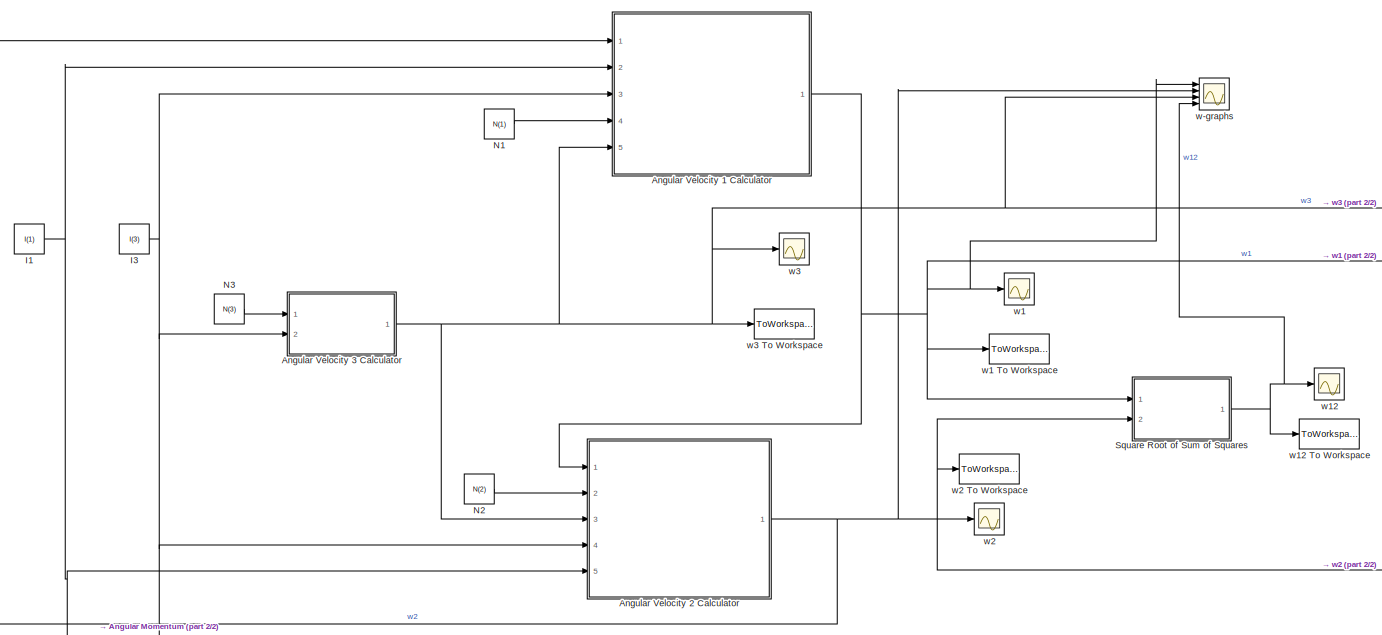
[diagram: root canvas - part 1/2, center side, full height]
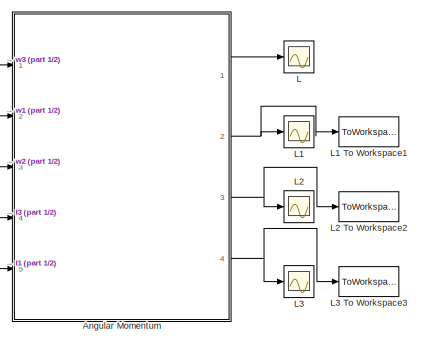
[diagram: root canvas - part 2/2, bottom right region]
MODEL slx_7f8dd500d670
KIND model
CONFIG AbsTol = 1e-5
CONFIG EnableMultiTasking = on
CONFIG FixedStep = auto
CONFIG MaxStep = 0.001
CONFIG MinStep = auto
CONFIG RelTol = 1e-5
CONFIG SampleTimeConstraint = Unconstrained
CONFIG Solver = ode45
CONFIG SolverName = ode45
CONFIG StartTime = 0.0
CONFIG StopTime = 20
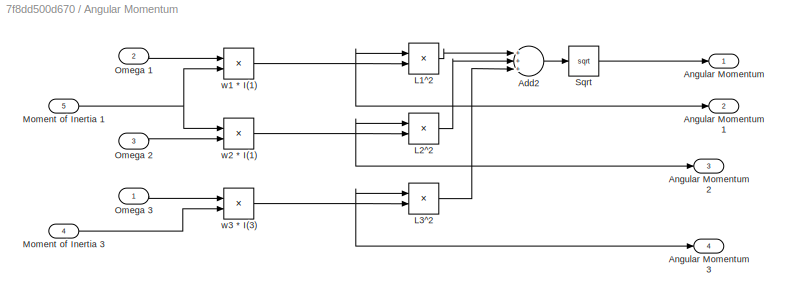
BLOCK [SubSystem] Angular Momentum
  Ports = [5, 4]
  RequestExecContextInheritance = off
  Variant = off
BLOCK [Sum] Angular Momentum/Add2
  InputSameDT = off
  Inputs = +++
  OutDataTypeStr = Inherit: Inherit via internal rule
  Ports = [3, 1]
  SaturateOnIntegerOverflow = off
BLOCK [Outport] Angular Momentum/Angular Momentum
  IconDisplay = Port number
BLOCK [Outport] Angular Momentum/Angular Momentum 1
  IconDisplay = Port number
  Port = 2
BLOCK [Outport] Angular Momentum/Angular Momentum 2
  IconDisplay = Port number
  Port = 3
BLOCK [Outport] Angular Momentum/Angular Momentum 3
  IconDisplay = Port number
  Port = 4
BLOCK [Product] Angular Momentum/L1^2
  InputSameDT = off
  OutDataTypeStr = Inherit: Inherit via internal rule
  Ports = [2, 1]
  RndMeth = Floor
  SaturateOnIntegerOverflow = off
BLOCK [Product] Angular Momentum/L2^2
  InputSameDT = off
  OutDataTypeStr = Inherit: Inherit via internal rule
  Ports = [2, 1]
  RndMeth = Floor
  SaturateOnIntegerOverflow = off
BLOCK [Product] Angular Momentum/L3^2
  InputSameDT = off
  OutDataTypeStr = Inherit: Inherit via internal rule
  Ports = [2, 1]
  RndMeth = Floor
  SaturateOnIntegerOverflow = off
BLOCK [Inport] Angular Momentum/Moment of Inertia 1 
  IconDisplay = Port number
  Port = 5
BLOCK [Inport] Angular Momentum/Moment of Inertia 3
  IconDisplay = Port number
  Port = 4
BLOCK [Inport] Angular Momentum/Omega 1
  IconDisplay = Port number
  Port = 2
BLOCK [Inport] Angular Momentum/Omega 2
  IconDisplay = Port number
  Port = 3
BLOCK [Inport] Angular Momentum/Omega 3
  IconDisplay = Port number
BLOCK [Sqrt] Angular Momentum/Sqrt
BLOCK [Product] Angular Momentum/w1 * I(1)
  InputSameDT = off
  OutDataTypeStr = Inherit: Inherit via internal rule
  Ports = [2, 1]
  RndMeth = Floor
  SaturateOnIntegerOverflow = off
BLOCK [Product] Angular Momentum/w2 * I(1)
  InputSameDT = off
  OutDataTypeStr = Inherit: Inherit via internal rule
  Ports = [2, 1]
  RndMeth = Floor
  SaturateOnIntegerOverflow = off
BLOCK [Product] Angular Momentum/w3 * I(3)
  InputSameDT = off
  OutDataTypeStr = Inherit: Inherit via internal rule
  Ports = [2, 1]
  RndMeth = Floor
  SaturateOnIntegerOverflow = off
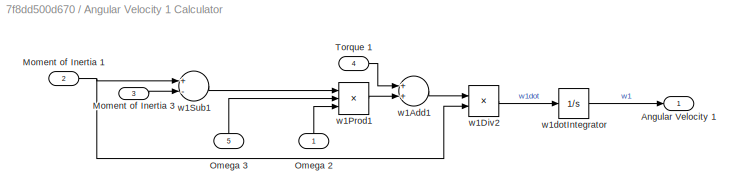
BLOCK [SubSystem] Angular Velocity 1 Calculator
  Ports = [5, 1]
  RequestExecContextInheritance = off
  Variant = off
BLOCK [Outport] Angular Velocity 1 Calculator/Angular Velocity 1
  IconDisplay = Port number
BLOCK [Inport] Angular Velocity 1 Calculator/Moment of Inertia 1
  IconDisplay = Port number
  Port = 2
BLOCK [Inport] Angular Velocity 1 Calculator/Moment of Inertia 3
  IconDisplay = Port number
  Port = 3
BLOCK [Inport] Angular Velocity 1 Calculator/Omega 2
  IconDisplay = Port number
BLOCK [Inport] Angular Velocity 1 Calculator/Omega 3
  IconDisplay = Port number
  Port = 5
BLOCK [Inport] Angular Velocity 1 Calculator/Torque 1
  IconDisplay = Port number
  Port = 4
BLOCK [Sum] Angular Velocity 1 Calculator/w1Add1
  InputSameDT = off
  OutDataTypeStr = Inherit: Inherit via internal rule
  Ports = [2, 1]
  SaturateOnIntegerOverflow = off
BLOCK [Product] Angular Velocity 1 Calculator/w1Div2
  InputSameDT = off
  Inputs = */
  OutDataTypeStr = Inherit: Inherit via internal rule
  Ports = [2, 1]
  RndMeth = Floor
  SaturateOnIntegerOverflow = off
BLOCK [Product] Angular Velocity 1 Calculator/w1Prod1
  InputSameDT = off
  Inputs = 3
  OutDataTypeStr = Inherit: Inherit via internal rule
  Ports = [3, 1]
  RndMeth = Floor
  SaturateOnIntegerOverflow = off
BLOCK [Sum] Angular Velocity 1 Calculator/w1Sub1
  InputSameDT = off
  Inputs = +-
  OutDataTypeStr = Inherit: Inherit via internal rule
  Ports = [2, 1]
  SaturateOnIntegerOverflow = off
BLOCK [Integrator] Angular Velocity 1 Calculator/w1dotIntegrator
  InitialCondition = w(1)
  Ports = [1, 1]
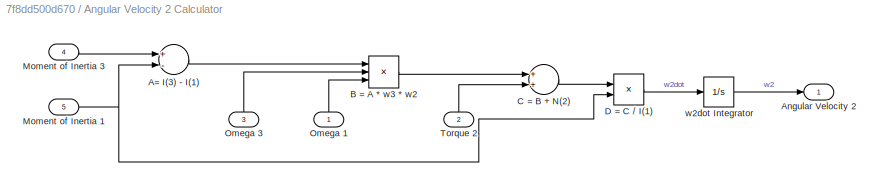
BLOCK [SubSystem] Angular Velocity 2 Calculator
  Ports = [5, 1]
  RequestExecContextInheritance = off
  Variant = off
BLOCK [Sum] Angular Velocity 2 Calculator/A= I(3) - I(1)
  InputSameDT = off
  Inputs = +-
  OutDataTypeStr = Inherit: Inherit via internal rule
  Ports = [2, 1]
  SaturateOnIntegerOverflow = off
BLOCK [Outport] Angular Velocity 2 Calculator/Angular Velocity 2
  IconDisplay = Port number
BLOCK [Product] Angular Velocity 2 Calculator/B =  A * w3 * w2
  InputSameDT = off
  Inputs = 3
  OutDataTypeStr = Inherit: Inherit via internal rule
  Ports = [3, 1]
  RndMeth = Floor
  SaturateOnIntegerOverflow = off
BLOCK [Sum] Angular Velocity 2 Calculator/C = B + N(2)
  InputSameDT = off
  OutDataTypeStr = Inherit: Inherit via internal rule
  Ports = [2, 1]
  SaturateOnIntegerOverflow = off
BLOCK [Product] Angular Velocity 2 Calculator/D = C // I(1)
  InputSameDT = off
  Inputs = */
  OutDataTypeStr = Inherit: Inherit via internal rule
  Ports = [2, 1]
  RndMeth = Floor
  SaturateOnIntegerOverflow = off
BLOCK [Inport] Angular Velocity 2 Calculator/Moment of Inertia 1
  IconDisplay = Port number
  Port = 5
BLOCK [Inport] Angular Velocity 2 Calculator/Moment of Inertia 3
  IconDisplay = Port number
  Port = 4
BLOCK [Inport] Angular Velocity 2 Calculator/Omega 1
  IconDisplay = Port number
BLOCK [Inport] Angular Velocity 2 Calculator/Omega 3
  IconDisplay = Port number
  Port = 3
BLOCK [Inport] Angular Velocity 2 Calculator/Torque 2
  IconDisplay = Port number
  Port = 2
BLOCK [Integrator] Angular Velocity 2 Calculator/w2dot Integrator
  InitialCondition = w(2)
  Ports = [1, 1]
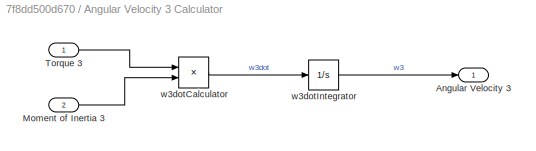
BLOCK [SubSystem] Angular Velocity 3 Calculator
  Ports = [2, 1]
  RequestExecContextInheritance = off
  Variant = off
BLOCK [Outport] Angular Velocity 3 Calculator/Angular Velocity 3 
  IconDisplay = Port number
BLOCK [Inport] Angular Velocity 3 Calculator/Moment of Inertia 3
  IconDisplay = Port number
  Port = 2
BLOCK [Inport] Angular Velocity 3 Calculator/Torque 3
  IconDisplay = Port number
BLOCK [Product] Angular Velocity 3 Calculator/w3dotCalculator
  InputSameDT = off
  Inputs = */
  OutDataTypeStr = Inherit: Inherit via internal rule
  Ports = [2, 1]
  RndMeth = Floor
  SaturateOnIntegerOverflow = off
BLOCK [Integrator] Angular Velocity 3 Calculator/w3dotIntegrator
  InitialCondition = w(3)
  Ports = [1, 1]
BLOCK [Constant] I1
  Value = I(1)
BLOCK [Constant] I3
  Value = I(3)
BLOCK [Scope] L
  NumInputPorts = 1
  Ports = [1]
  ScopeSpecificationString = Simulink.scopes.TimeScopeBlockCfg('CurrentConfiguration', extmgr.ConfigurationSet(extmgr.Configuration('Core','General UI',true),extmgr.Configuration('Core','Source UI',true),extmgr.Configuration('Sources','WiredSimulink',true,'DataLoggingVariableName','ScopeData4'),extmgr.Configuration('Visuals','Time Domain',true,'SerializedDisplays',{struct('MinYLimReal','35.12833614050044','MaxYLimReal','35.12...<+1484ch>
BLOCK [Scope] L1
  NumInputPorts = 1
  Ports = [1]
  ScopeSpecificationString = Simulink.scopes.TimeScopeBlockCfg('CurrentConfiguration', extmgr.ConfigurationSet(extmgr.Configuration('Core','General UI',true),extmgr.Configuration('Core','Source UI',true),extmgr.Configuration('Sources','WiredSimulink',true,'DataLoggingVariableName','ScopeData1','DataLoggingLimitDataPoints',true,'DataLoggingSaveFormat','Array','DataLoggingDecimation','1','DataLoggingDecimateData',true),extmgr.C...<+1502ch>
BLOCK [ToWorkspace] L1 To Workspace1
  FixptAsFi = on
  MaxDataPoints = inf
  Ports = [1]
  SampleTime = -1
  Save2DSignal = 3-D array (concatenate along third dimension)
  SaveFormat = Timeseries
  VariableName = L1
BLOCK [Scope] L2
  NumInputPorts = 1
  Ports = [1]
  ScopeSpecificationString = Simulink.scopes.TimeScopeBlockCfg('CurrentConfiguration', extmgr.ConfigurationSet(extmgr.Configuration('Core','General UI',true),extmgr.Configuration('Core','Source UI',true),extmgr.Configuration('Sources','WiredSimulink',true,'DataLoggingVariableName','ScopeData2','DataLoggingLimitDataPoints',true,'DataLoggingSaveFormat','Array','DataLoggingDecimation','1','DataLoggingDecimateData',true),extmgr.C...<+1502ch>
BLOCK [ToWorkspace] L2 To Workspace2
  FixptAsFi = on
  MaxDataPoints = inf
  Ports = [1]
  SampleTime = -1
  Save2DSignal = 3-D array (concatenate along third dimension)
  SaveFormat = Timeseries
  VariableName = L2
BLOCK [Scope] L3
  NumInputPorts = 1
  Ports = [1]
  ScopeSpecificationString = Simulink.scopes.TimeScopeBlockCfg('CurrentConfiguration', extmgr.ConfigurationSet(extmgr.Configuration('Core','General UI',true),extmgr.Configuration('Core','Source UI',true),extmgr.Configuration('Sources','WiredSimulink',true,'DataLoggingVariableName','ScopeData3'),extmgr.Configuration('Visuals','Time Domain',true,'SerializedDisplays',{struct('MinYLimReal','25.00000','MaxYLimReal','45.00000','YLa...<+1383ch>
BLOCK [ToWorkspace] L3 To Workspace3
  FixptAsFi = on
  MaxDataPoints = inf
  Ports = [1]
  SampleTime = -1
  Save2DSignal = 3-D array (concatenate along third dimension)
  SaveFormat = Timeseries
  VariableName = L3
BLOCK [Constant] N1
  Value = N(1)
BLOCK [Constant] N2
  Value = N(2)
BLOCK [Constant] N3
  Value = N(3)
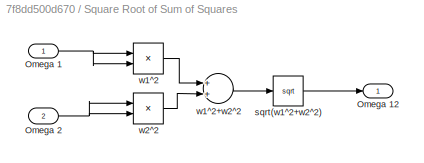
BLOCK [SubSystem] Square Root of Sum of Squares
  Ports = [2, 1]
  RequestExecContextInheritance = off
  Variant = off
BLOCK [Inport] Square Root of Sum of Squares/Omega 1
  IconDisplay = Port number
BLOCK [Outport] Square Root of Sum of Squares/Omega 12
  IconDisplay = Port number
BLOCK [Inport] Square Root of Sum of Squares/Omega 2
  IconDisplay = Port number
  Port = 2
BLOCK [Sqrt] Square Root of Sum of Squares/sqrt(w1^2+w2^2)
BLOCK [Product] Square Root of Sum of Squares/w1^2
  InputSameDT = off
  OutDataTypeStr = Inherit: Inherit via internal rule
  Ports = [2, 1]
  RndMeth = Floor
  SaturateOnIntegerOverflow = off
BLOCK [Sum] Square Root of Sum of Squares/w1^2+w2^2
  InputSameDT = off
  OutDataTypeStr = Inherit: Inherit via internal rule
  Ports = [2, 1]
  SaturateOnIntegerOverflow = off
BLOCK [Product] Square Root of Sum of Squares/w2^2
  InputSameDT = off
  OutDataTypeStr = Inherit: Inherit via internal rule
  Ports = [2, 1]
  RndMeth = Floor
  SaturateOnIntegerOverflow = off
BLOCK [Scope] w-graphs
  NumInputPorts = 4
  Ports = [4]
  ScopeSpecificationString = Simulink.scopes.TimeScopeBlockCfg('CurrentConfiguration', extmgr.ConfigurationSet(extmgr.Configuration('Core','General UI',true),extmgr.Configuration('Core','Source UI',true),extmgr.Configuration('Sources','WiredSimulink',true,'DataLoggingVariableName','ScopeData1'),extmgr.Configuration('Visuals','Time Domain',true,'SerializedDisplays',{struct('MinYLimReal','-6.73146','MaxYLimReal','6.73146','YLab...<+3400ch>
BLOCK [Scope] w1
  NumInputPorts = 1
  Ports = [1]
  ScopeSpecificationString = Simulink.scopes.TimeScopeBlockCfg('CurrentConfiguration', extmgr.ConfigurationSet(extmgr.Configuration('Core','General UI',true),extmgr.Configuration('Core','Source UI',true),extmgr.Configuration('Sources','WiredSimulink',true,'DataLoggingVariableName','ScopeData1'),extmgr.Configuration('Visuals','Time Domain',true,'SerializedDisplays',{struct('MinYLimReal','-6.73146','MaxYLimReal','6.73146','YLab...<+1361ch>
BLOCK [ToWorkspace] w1 To Workspace
  FixptAsFi = on
  MaxDataPoints = inf
  Ports = [1]
  SampleTime = -1
  Save2DSignal = 3-D array (concatenate along third dimension)
  SaveFormat = Timeseries
  VariableName = w1
BLOCK [Scope] w12
  NumInputPorts = 1
  Ports = [1]
  ScopeSpecificationString = Simulink.scopes.TimeScopeBlockCfg('CurrentConfiguration', extmgr.ConfigurationSet(extmgr.Configuration('Core','General UI',true),extmgr.Configuration('Core','Source UI',true),extmgr.Configuration('Sources','WiredSimulink',true,'DataLoggingVariableName','ScopeData4'),extmgr.Configuration('Visuals','Time Domain',true,'SerializedDisplays',{struct('MinYLimReal','5.385164807134461','MaxYLimReal','5.385...<+1440ch>
BLOCK [ToWorkspace] w12 To Workspace
  FixptAsFi = on
  MaxDataPoints = inf
  Ports = [1]
  SampleTime = -1
  Save2DSignal = 3-D array (concatenate along third dimension)
  SaveFormat = Timeseries
  VariableName = w12
BLOCK [Scope] w2
  NumInputPorts = 1
  Ports = [1]
  ScopeSpecificationString = Simulink.scopes.TimeScopeBlockCfg('CurrentConfiguration', extmgr.ConfigurationSet(extmgr.Configuration('Core','General UI',true),extmgr.Configuration('Core','Source UI',true),extmgr.Configuration('Sources','WiredSimulink',true,'DataLoggingVariableName','ScopeData2','DataLoggingSaveFormat','Array','DataLoggingDecimation','1','DataLoggingDecimateData',true),extmgr.Configuration('Visuals','Time Domai...<+1452ch>
BLOCK [ToWorkspace] w2 To Workspace
  FixptAsFi = on
  MaxDataPoints = inf
  Ports = [1]
  SampleTime = -1
  Save2DSignal = 3-D array (concatenate along third dimension)
  SaveFormat = Timeseries
  VariableName = w2
BLOCK [Scope] w3
  NumInputPorts = 1
  Ports = [1]
  ScopeSpecificationString = Simulink.scopes.TimeScopeBlockCfg('CurrentConfiguration', extmgr.ConfigurationSet(extmgr.Configuration('Core','General UI',true),extmgr.Configuration('Core','Source UI',true),extmgr.Configuration('Sources','WiredSimulink',true,'DataLoggingVariableName','ScopeData3'),extmgr.Configuration('Visuals','Time Domain',true,'SerializedDisplays',{struct('MinYLimReal','-7.00000','MaxYLimReal','-5.00000','YLa...<+1363ch>
BLOCK [ToWorkspace] w3 To Workspace
  FixptAsFi = on
  MaxDataPoints = inf
  Ports = [1]
  SampleTime = -1
  Save2DSignal = 3-D array (concatenate along third dimension)
  SaveFormat = Timeseries
  VariableName = w3
LINE Angular Momentum/Add2:1 -> Angular Momentum/Sqrt:1
LINE Angular Momentum/L1^2:1 -> Angular Momentum/Add2:1
LINE Angular Momentum/L2^2:1 -> Angular Momentum/Add2:2
LINE Angular Momentum/L3^2:1 -> Angular Momentum/Add2:3
NET Angular Momentum/Moment of Inertia 1 :1 -> Angular Momentum/w1 * I(1):2, Angular Momentum/w2 * I(1):1
LINE Angular Momentum/Moment of Inertia 3:1 -> Angular Momentum/w3 * I(3):2
LINE Angular Momentum/Omega 1:1 -> Angular Momentum/w1 * I(1):1
LINE Angular Momentum/Omega 2:1 -> Angular Momentum/w2 * I(1):2
LINE Angular Momentum/Omega 3:1 -> Angular Momentum/w3 * I(3):1
LINE Angular Momentum/Sqrt:1 -> Angular Momentum/Angular Momentum:1
NET Angular Momentum/w1 * I(1):1 -> Angular Momentum/Angular Momentum 1:1, Angular Momentum/L1^2:1, Angular Momentum/L1^2:2
NET Angular Momentum/w2 * I(1):1 -> Angular Momentum/Angular Momentum 2:1, Angular Momentum/L2^2:1, Angular Momentum/L2^2:2
NET Angular Momentum/w3 * I(3):1 -> Angular Momentum/Angular Momentum 3:1, Angular Momentum/L3^2:1, Angular Momentum/L3^2:2
LINE Angular Momentum:1 -> L:1
NET Angular Momentum:2 -> L1 To Workspace1:1, L1:1
NET Angular Momentum:3 -> L2 To Workspace2:1, L2:1
NET Angular Momentum:4 -> L3 To Workspace3:1, L3:1
NET Angular Velocity 1 Calculator/Moment of Inertia 1:1 -> Angular Velocity 1 Calculator/w1Div2:2, Angular Velocity 1 Calculator/w1Sub1:1
LINE Angular Velocity 1 Calculator/Moment of Inertia 3:1 -> Angular Velocity 1 Calculator/w1Sub1:2
LINE Angular Velocity 1 Calculator/Omega 2:1 -> Angular Velocity 1 Calculator/w1Prod1:3
LINE Angular Velocity 1 Calculator/Omega 3:1 -> Angular Velocity 1 Calculator/w1Prod1:2
LINE Angular Velocity 1 Calculator/Torque 1:1 -> Angular Velocity 1 Calculator/w1Add1:1
LINE Angular Velocity 1 Calculator/w1Add1:1 -> Angular Velocity 1 Calculator/w1Div2:1
LINE Angular Velocity 1 Calculator/w1Div2:1 -> Angular Velocity 1 Calculator/w1dotIntegrator:1
LINE Angular Velocity 1 Calculator/w1Prod1:1 -> Angular Velocity 1 Calculator/w1Add1:2
LINE Angular Velocity 1 Calculator/w1Sub1:1 -> Angular Velocity 1 Calculator/w1Prod1:1
LINE Angular Velocity 1 Calculator/w1dotIntegrator:1 -> Angular Velocity 1 Calculator/Angular Velocity 1:1
NET Angular Velocity 1 Calculator:1 -> Angular Momentum:2, Angular Velocity 2 Calculator:1, Square Root of Sum of Squares:1, w-graphs:1, w1 To Workspace:1, w1:1
LINE Angular Velocity 2 Calculator/A= I(3) - I(1):1 -> Angular Velocity 2 Calculator/B =  A * w3 * w2:1
LINE Angular Velocity 2 Calculator/B =  A * w3 * w2:1 -> Angular Velocity 2 Calculator/C = B + N(2):1
LINE Angular Velocity 2 Calculator/C = B + N(2):1 -> Angular Velocity 2 Calculator/D = C // I(1):1
LINE Angular Velocity 2 Calculator/D = C // I(1):1 -> Angular Velocity 2 Calculator/w2dot Integrator:1
NET Angular Velocity 2 Calculator/Moment of Inertia 1:1 -> Angular Velocity 2 Calculator/A= I(3) - I(1):2, Angular Velocity 2 Calculator/D = C // I(1):2
LINE Angular Velocity 2 Calculator/Moment of Inertia 3:1 -> Angular Velocity 2 Calculator/A= I(3) - I(1):1
LINE Angular Velocity 2 Calculator/Omega 1:1 -> Angular Velocity 2 Calculator/B =  A * w3 * w2:3
LINE Angular Velocity 2 Calculator/Omega 3:1 -> Angular Velocity 2 Calculator/B =  A * w3 * w2:2
LINE Angular Velocity 2 Calculator/Torque 2:1 -> Angular Velocity 2 Calculator/C = B + N(2):2
LINE Angular Velocity 2 Calculator/w2dot Integrator:1 -> Angular Velocity 2 Calculator/Angular Velocity 2:1
NET Angular Velocity 2 Calculator:1 -> Angular Momentum:3, Angular Velocity 1 Calculator:1, Square Root of Sum of Squares:2, w-graphs:2, w2 To Workspace:1, w2:1
LINE Angular Velocity 3 Calculator/Moment of Inertia 3:1 -> Angular Velocity 3 Calculator/w3dotCalculator:2
LINE Angular Velocity 3 Calculator/Torque 3:1 -> Angular Velocity 3 Calculator/w3dotCalculator:1
LINE Angular Velocity 3 Calculator/w3dotCalculator:1 -> Angular Velocity 3 Calculator/w3dotIntegrator:1
LINE Angular Velocity 3 Calculator/w3dotIntegrator:1 -> Angular Velocity 3 Calculator/Angular Velocity 3 :1
NET Angular Velocity 3 Calculator:1 -> Angular Momentum:1, Angular Velocity 1 Calculator:5, Angular Velocity 2 Calculator:3, w-graphs:3, w3 To Workspace:1, w3:1
NET I1:1 -> Angular Momentum:5, Angular Velocity 1 Calculator:2, Angular Velocity 2 Calculator:5
NET I3:1 -> Angular Momentum:4, Angular Velocity 1 Calculator:3, Angular Velocity 2 Calculator:4, Angular Velocity 3 Calculator:2
LINE N1:1 -> Angular Velocity 1 Calculator:4
LINE N2:1 -> Angular Velocity 2 Calculator:2
LINE N3:1 -> Angular Velocity 3 Calculator:1
NET Square Root of Sum of Squares/Omega 1:1 -> Square Root of Sum of Squares/w1^2:1, Square Root of Sum of Squares/w1^2:2
NET Square Root of Sum of Squares/Omega 2:1 -> Square Root of Sum of Squares/w2^2:1, Square Root of Sum of Squares/w2^2:2
LINE Square Root of Sum of Squares/sqrt(w1^2+w2^2):1 -> Square Root of Sum of Squares/Omega 12:1
LINE Square Root of Sum of Squares/w1^2+w2^2:1 -> Square Root of Sum of Squares/sqrt(w1^2+w2^2):1
LINE Square Root of Sum of Squares/w1^2:1 -> Square Root of Sum of Squares/w1^2+w2^2:1
LINE Square Root of Sum of Squares/w2^2:1 -> Square Root of Sum of Squares/w1^2+w2^2:2
NET Square Root of Sum of Squares:1 -> w-graphs:4, w12 To Workspace:1, w12:1
note: NET lines group one-source signal fan-out (src -> all destinations, sorted); 1:1 wires keep LINE
